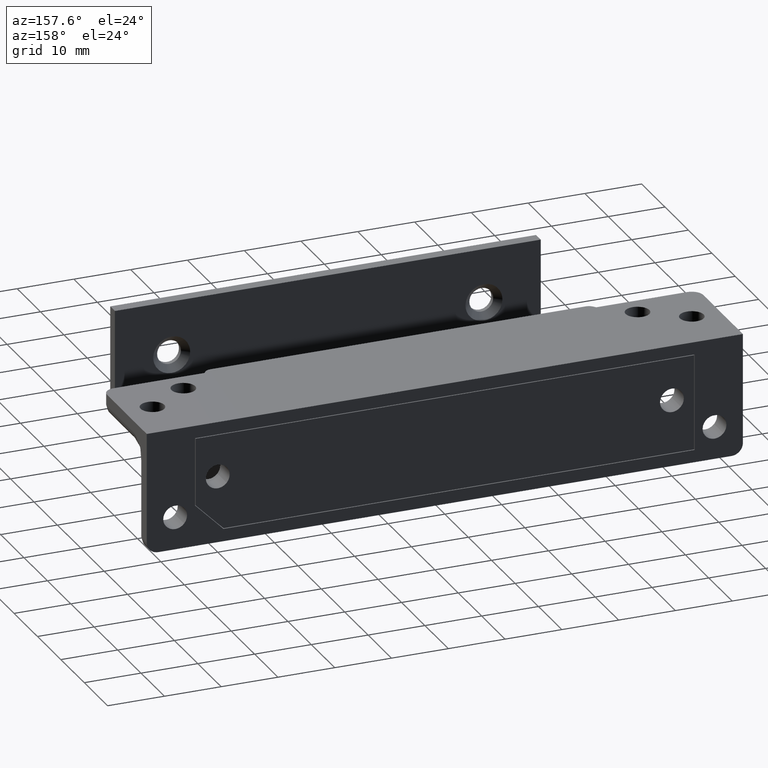
[diagram: clean part render]
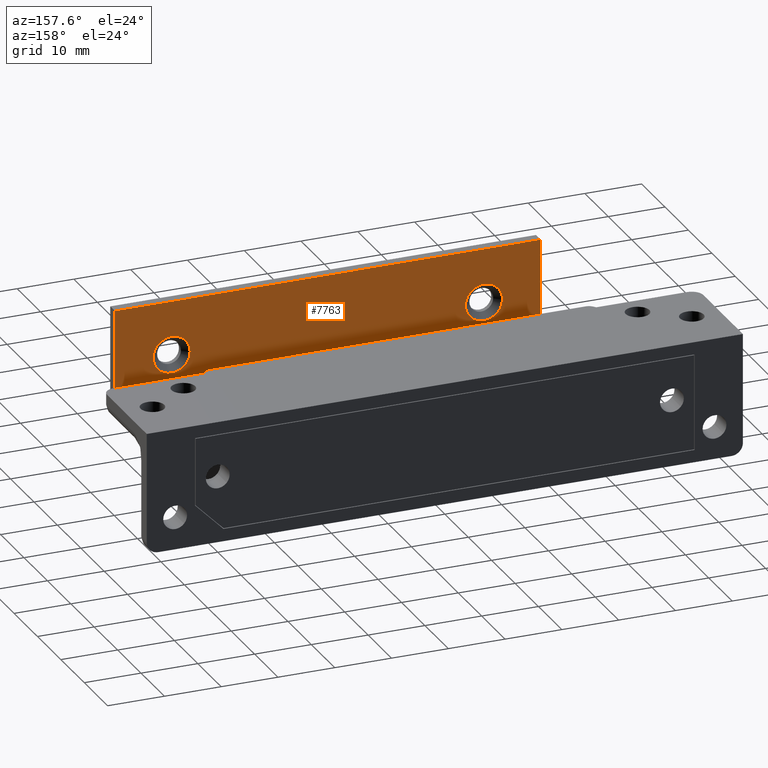
[diagram: same view with one face highlighted and labeled with its STEP entity id]
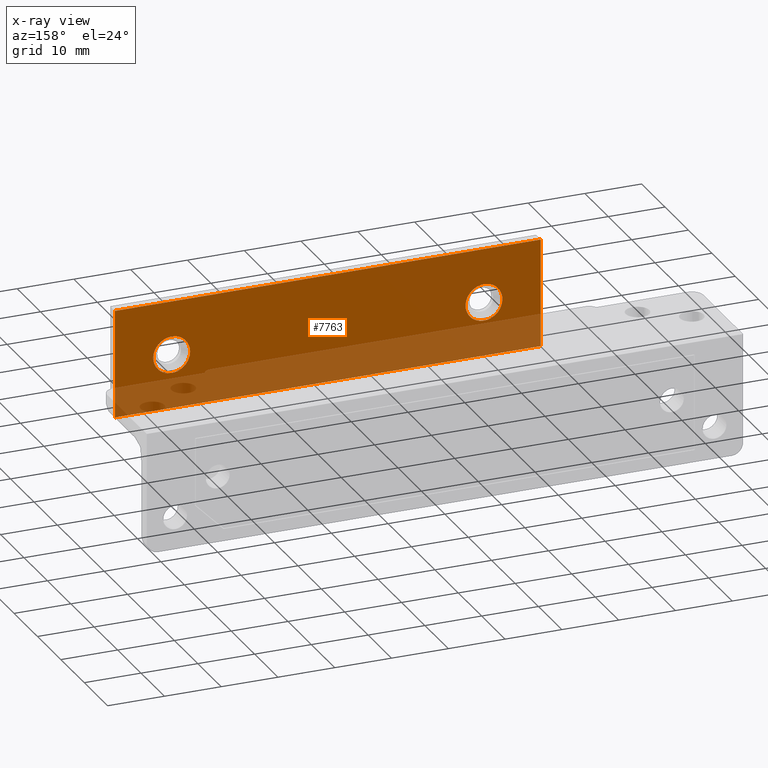
[diagram: x-ray of the same camera — body ghosted, the highlighted face saturated]
A machine part, auxiliary view. The second image highlights one B-rep face of the part: STEP entity #7763.
The next image is the same camera in x-ray: the body ghosted, the highlighted face saturated — about 31% of this face is hidden behind the body in this view.
In plain terms, the highlighted face is a freeform B-spline surface patch.
Its self-contained STEP definition (entity closure, byte-faithful):
#7080=CARTESIAN_POINT('',(29.777954735354552,-50.000000177712749,-2.318063579535655));
#7081=VERTEX_POINT('',#7080);
#7087=CARTESIAN_POINT('',(27.500000000000000,-50.000000000028876,-3.249999999984709));
#7088=VERTEX_POINT('',#7087);
#7089=CARTESIAN_POINT('',(27.500000000000000,-50.000000000028876,-3.249999999984709));
#7090=CARTESIAN_POINT('',(27.789236248653079,-50.000000022589738,-3.250084351816666));
#7091=CARTESIAN_POINT('',(28.288765553078420,-50.000000061553770,-3.182859303232132));
#7092=CARTESIAN_POINT('',(29.078739617293131,-50.000000123172917,-2.881841108904424));
#7093=CARTESIAN_POINT('',(29.534273176655141,-50.000000158705220,-2.557808117488422));
#7094=CARTESIAN_POINT('',(29.777954735354552,-50.000000177712749,-2.318063579535655));
#7095=B_SPLINE_CURVE_WITH_KNOTS('',3,(#7089,#7090,#7091,#7092,#7093,#7094),.UNSPECIFIED.,.F.,.U.,(4,1,1,4),(0.000000018384278,0.867709225963425,1.498769427861097,2.524244165452475),.UNSPECIFIED.);
#7096=EDGE_CURVE('',#7088,#7081,#7095,.T.);
#7098=CARTESIAN_POINT('',(24.250000000000309,-50.000000000028876,-0.000001421672050));
#7099=VERTEX_POINT('',#7098);
#7100=CARTESIAN_POINT('',(24.250000000000309,-50.000000000028876,-0.000001421672050));
#7101=CARTESIAN_POINT('',(24.249729508343592,-50.000000000028876,-0.372288937900451));
#7102=CARTESIAN_POINT('',(24.370116174609748,-50.000000000028876,-1.063388400728770));
#7103=CARTESIAN_POINT('',(24.851504641336138,-50.000000000028876,-1.964280287381844));
#7104=CARTESIAN_POINT('',(25.478787226577069,-50.000000000028876,-2.591384195304550));
#7105=CARTESIAN_POINT('',(26.125991528228369,-50.000000000028876,-2.968482681876818));
#7106=CARTESIAN_POINT('',(26.782129390780341,-50.000000000028876,-3.194210430665273));
#7107=CARTESIAN_POINT('',(27.234104099381110,-50.000000000028876,-3.250062899152202));
#7108=CARTESIAN_POINT('',(27.500000000000000,-50.000000000028876,-3.249999999984709));
#7109=B_SPLINE_CURVE_WITH_KNOTS('',3,(#7100,#7101,#7102,#7103,#7104,#7105,#7106,#7107,#7108),.UNSPECIFIED.,.F.,.U.,(4,1,1,1,1,1,4),(0.000000064401550,1.116762141591425,2.074010538020876,3.031212857517661,3.749142410847695,4.307530085255475,5.105215367780756),.UNSPECIFIED.);
#7110=EDGE_CURVE('',#7099,#7088,#7109,.T.);
#7112=CARTESIAN_POINT('',(25.222045264645448,-50.000000177712742,2.318063579566243));
#7113=VERTEX_POINT('',#7112);
#7114=CARTESIAN_POINT('',(25.222045264645448,-50.000000177712742,2.318063579566243));
#7115=CARTESIAN_POINT('',(25.049431191091191,-50.000000164715367,2.148499630264473));
#7116=CARTESIAN_POINT('',(24.759455658484541,-50.000000137355840,1.791567014809346));
#7117=CARTESIAN_POINT('',(24.366637793193679,-50.000000078319360,1.021376678128810));
#7118=CARTESIAN_POINT('',(24.249610925837509,-50.000000030945223,0.403333307649948));
#7119=CARTESIAN_POINT('',(24.250000000000309,-50.000000000028876,-0.000001421672050));
#7120=B_SPLINE_CURVE_WITH_KNOTS('',3,(#7114,#7115,#7116,#7117,#7118,#7119),.UNSPECIFIED.,.F.,.U.,(4,1,1,4),(0.000000020664869,0.725898726312078,1.371141478815045,2.580973052977738),.UNSPECIFIED.);
#7121=EDGE_CURVE('',#7113,#7099,#7120,.T.);
#7218=CARTESIAN_POINT('',(27.500000000000000,-50.000000000028876,3.250000000015290));
#7219=VERTEX_POINT('',#7218);
#7220=CARTESIAN_POINT('',(27.500000000000000,-50.000000000028876,3.250000000015290));
#7221=CARTESIAN_POINT('',(27.210758624578141,-50.000000022590143,3.250092429246217));
#7222=CARTESIAN_POINT('',(26.763833679948750,-50.000000057450947,3.189905312030370));
#7223=CARTESIAN_POINT('',(25.968388887208000,-50.000000119496832,2.908781386168577));
#7224=CARTESIAN_POINT('',(25.503148611059260,-50.000000155786260,2.594809348598150));
#7225=CARTESIAN_POINT('',(25.222045264645448,-50.000000177712742,2.318063579566243));
#7226=B_SPLINE_CURVE_WITH_KNOTS('',3,(#7220,#7221,#7222,#7223,#7224,#7225),.UNSPECIFIED.,.F.,.U.,(4,1,1,4),(0.000000018384682,0.867709225963697,1.341004305125148,2.524244165452466),.UNSPECIFIED.);
#7227=EDGE_CURVE('',#7219,#7113,#7226,.T.);
#7229=CARTESIAN_POINT('',(30.749999999999691,-50.000000000028876,0.000001421702658));
#7230=VERTEX_POINT('',#7229);
#7231=CARTESIAN_POINT('',(30.749999999999691,-50.000000000028876,0.000001421702658));
#7232=CARTESIAN_POINT('',(30.750142736657899,-50.000000000028876,0.319085247449473));
#7233=CARTESIAN_POINT('',(30.663139963746360,-50.000000000028876,0.903957290492452));
#7234=CARTESIAN_POINT('',(30.337454528502949,-50.000000000028876,1.638708578682652));
#7235=CARTESIAN_POINT('',(29.891795635182021,-50.000000000028876,2.239583064643636));
#7236=CARTESIAN_POINT('',(29.384684355298099,-50.000000000028876,2.677043592834235));
#7237=CARTESIAN_POINT('',(28.823523235984759,-50.000000000028876,2.985829888192655));
#7238=CARTESIAN_POINT('',(28.217874207433528,-50.000000000028876,3.194206730657289));
#7239=CARTESIAN_POINT('',(27.765894396333611,-50.000000000028876,3.250065628573207));
#7240=CARTESIAN_POINT('',(27.500000000000000,-50.000000000028876,3.250000000015290));
#7241=B_SPLINE_CURVE_WITH_KNOTS('',3,(#7231,#7232,#7233,#7234,#7235,#7236,#7237,#7238,#7239,#7240),.UNSPECIFIED.,.F.,.U.,(4,1,1,1,1,1,1,4),(0.000000064401016,0.957219679815024,1.754930391529063,2.393080650056512,3.190752637557175,3.749142410847547,4.307530085255438,5.105215367780743),.UNSPECIFIED.);
#7242=EDGE_CURVE('',#7230,#7219,#7241,.T.);
#7244=CARTESIAN_POINT('',(29.777954735354552,-50.000000177712749,-2.318063579535655));
#7245=CARTESIAN_POINT('',(29.950560401551460,-50.000000164715388,-2.148499957011680));
#7246=CARTESIAN_POINT('',(30.240560664902169,-50.000000137355983,-1.791568785072204));
#7247=CARTESIAN_POINT('',(30.633348086990910,-50.000000078319360,-1.021376595650371));
#7248=CARTESIAN_POINT('',(30.750395438635799,-50.000000030945174,-0.403332735397646));
#7249=CARTESIAN_POINT('',(30.749999999999691,-50.000000000028876,0.000001421702658));
#7250=B_SPLINE_CURVE_WITH_KNOTS('',3,(#7244,#7245,#7246,#7247,#7248,#7249),.UNSPECIFIED.,.F.,.U.,(4,1,1,4),(0.000000020664701,0.725898726312060,1.371141478815047,2.580973052977759),.UNSPECIFIED.);
#7251=EDGE_CURVE('',#7081,#7230,#7250,.T.);
#7276=CARTESIAN_POINT('',(-25.222045264645448,-50.000000177712742,-2.318063579566240));
#7277=VERTEX_POINT('',#7276);
#7283=CARTESIAN_POINT('',(-27.500000000000000,-50.000000000028876,-3.250000000015290));
#7284=VERTEX_POINT('',#7283);
#7285=CARTESIAN_POINT('',(-27.500000000000000,-50.000000000028876,-3.250000000015290));
#7286=CARTESIAN_POINT('',(-27.263357725444841,-50.000000018487327,-3.250032667524085));
#7287=CARTESIAN_POINT('',(-26.763789691108851,-50.000000057454379,-3.195215671057691));
#7288=CARTESIAN_POINT('',(-25.964609134286039,-50.000000119791657,-2.912803420932142));
#7289=CARTESIAN_POINT('',(-25.465748596573320,-50.000000158703521,-2.557760557089715));
#7290=CARTESIAN_POINT('',(-25.222045264645448,-50.000000177712742,-2.318063579566240));
#7291=B_SPLINE_CURVE_WITH_KNOTS('',3,(#7285,#7286,#7287,#7288,#7289,#7290),.UNSPECIFIED.,.F.,.U.,(4,1,1,4),(0.000000018384462,0.709943720819770,1.498769427861115,2.524244165452472),.UNSPECIFIED.);
#7292=EDGE_CURVE('',#7284,#7277,#7291,.T.);
#7294=CARTESIAN_POINT('',(-30.749999999999691,-50.000000000028876,-0.000001421702630));
#7295=VERTEX_POINT('',#7294);
#7296=CARTESIAN_POINT('',(-30.749999999999691,-50.000000000028876,-0.000001421702630));
#7297=CARTESIAN_POINT('',(-30.750123028379932,-50.000000000028876,-0.319078588820787));
#7298=CARTESIAN_POINT('',(-30.671056672675451,-50.000000000028876,-0.850789064889117));
#7299=CARTESIAN_POINT('',(-30.405146777706278,-50.000000000028876,-1.492543591170997));
#7300=CARTESIAN_POINT('',(-30.091342387183531,-50.000000000028876,-1.988074558392051));
#7301=CARTESIAN_POINT('',(-29.607017685378569,-50.000000000028876,-2.522745085236253));
#7302=CARTESIAN_POINT('',(-28.975027239759221,-50.000000000028876,-2.933875184793548));
#7303=CARTESIAN_POINT('',(-28.217861222788670,-50.000000000028876,-3.194187614251335));
#7304=CARTESIAN_POINT('',(-27.765894570068529,-50.000000000028876,-3.250065349796170));
#7305=CARTESIAN_POINT('',(-27.500000000000000,-50.000000000028876,-3.250000000015290));
#7306=B_SPLINE_CURVE_WITH_KNOTS('',3,(#7296,#7297,#7298,#7299,#7300,#7301,#7302,#7303,#7304,#7305),.UNSPECIFIED.,.F.,.U.,(4,1,1,1,1,1,1,4),(0.000000064401023,0.957219679815100,1.595388777083437,2.074010538020763,2.712138967373937,3.749142410847658,4.307530085255511,5.105215367780757),.UNSPECIFIED.);
#7307=EDGE_CURVE('',#7295,#7284,#7306,.T.);
#7309=CARTESIAN_POINT('',(-29.777954735354559,-50.000000177712742,2.318063579535663));
#7310=VERTEX_POINT('',#7309);
#7311=CARTESIAN_POINT('',(-29.777954735354559,-50.000000177712742,2.318063579535663));
#7312=CARTESIAN_POINT('',(-29.912183640889541,-50.000000167602387,2.186163774927922));
#7313=CARTESIAN_POINT('',(-30.210295836625981,-50.000000140873240,1.837455095945971));
#7314=CARTESIAN_POINT('',(-30.623222398482039,-50.000000082441581,1.075155220203669));
#7315=CARTESIAN_POINT('',(-30.750378672906969,-50.000000030944328,0.403321755221242));
#7316=CARTESIAN_POINT('',(-30.749999999999691,-50.000000000028876,-0.000001421702630));
#7317=B_SPLINE_CURVE_WITH_KNOTS('',3,(#7311,#7312,#7313,#7314,#7315,#7316),.UNSPECIFIED.,.F.,.U.,(4,1,1,4),(0.000000020664845,0.564587831165066,1.371141478815035,2.580973052977736),.UNSPECIFIED.);
#7318=EDGE_CURVE('',#7310,#7295,#7317,.T.);
#7413=CARTESIAN_POINT('',(-27.500000000000000,-50.000000000028876,3.249999999984709));
#7414=VERTEX_POINT('',#7413);
#7415=CARTESIAN_POINT('',(-27.500000000000000,-50.000000000028876,3.249999999984709));
#7416=CARTESIAN_POINT('',(-27.736643234341010,-50.000000018487398,3.250040805356807));
#7417=CARTESIAN_POINT('',(-28.183608550316631,-50.000000053351357,3.200944577092945));
#7418=CARTESIAN_POINT('',(-28.987316580218408,-50.000000116041790,2.938734473976679));
#7419=CARTESIAN_POINT('',(-29.496831143120190,-50.000000155784683,2.594770076723193));
#7420=CARTESIAN_POINT('',(-29.777954735354559,-50.000000177712742,2.318063579535663));
#7421=B_SPLINE_CURVE_WITH_KNOTS('',3,(#7415,#7416,#7417,#7418,#7419,#7420),.UNSPECIFIED.,.F.,.U.,(4,1,1,4),(0.000000018385017,0.709943720820113,1.341004305125209,2.524244165452468),.UNSPECIFIED.);
#7422=EDGE_CURVE('',#7414,#7310,#7421,.T.);
#7424=CARTESIAN_POINT('',(-24.250000000000309,-50.000000000028876,0.000001421672076));
#7425=VERTEX_POINT('',#7424);
#7426=CARTESIAN_POINT('',(-24.250000000000309,-50.000000000028876,0.000001421672076));
#7427=CARTESIAN_POINT('',(-24.249984958313568,-50.000000000028876,0.212706949526771));
#7428=CARTESIAN_POINT('',(-24.297099104451519,-50.000000000028876,0.691322118544175));
#7429=CARTESIAN_POINT('',(-24.515589453197631,-50.000000000028876,1.352691379790430));
#7430=CARTESIAN_POINT('',(-24.872749810031120,-50.000000000028876,1.948512120745751));
#7431=CARTESIAN_POINT('',(-25.321303073714990,-50.000000000028876,2.443412301134377));
#7432=CARTESIAN_POINT('',(-25.928325299567771,-50.000000000028876,2.882294389241335));
#7433=CARTESIAN_POINT('',(-26.675756374772149,-50.000000000028876,3.181127776863941));
#7434=CARTESIAN_POINT('',(-27.234107829061859,-50.000000000028876,3.250055237087814));
#7435=CARTESIAN_POINT('',(-27.500000000000000,-50.000000000028876,3.249999999984709));
#7436=B_SPLINE_CURVE_WITH_KNOTS('',3,(#7426,#7427,#7428,#7429,#7430,#7431,#7432,#7433,#7434,#7435),.UNSPECIFIED.,.F.,.U.,(4,1,1,1,1,1,1,4),(0.000000064400994,0.638137357831984,1.435846731178808,2.074010538020847,2.712138967373959,3.430063221698770,4.307530085255451,5.105215367780743),.UNSPECIFIED.);
#7437=EDGE_CURVE('',#7425,#7414,#7436,.T.);
#7439=CARTESIAN_POINT('',(-25.222045264645448,-50.000000177712742,-2.318063579566240));
#7440=CARTESIAN_POINT('',(-25.011037542922750,-50.000000161829163,-2.110846114989051));
#7441=CARTESIAN_POINT('',(-24.729224337786079,-50.000000133837233,-1.745663184142493));
#7442=CARTESIAN_POINT('',(-24.356479113798610,-50.000000074198397,-0.967614503417273));
#7443=CARTESIAN_POINT('',(-24.249603880410589,-50.000000030945841,-0.403341405785203));
#7444=CARTESIAN_POINT('',(-24.250000000000309,-50.000000000028876,0.000001421672076));
#7445=B_SPLINE_CURVE_WITH_KNOTS('',3,(#7439,#7440,#7441,#7442,#7443,#7444),.UNSPECIFIED.,.F.,.U.,(4,1,1,4),(0.000000020664956,0.887209815646021,1.371141478815017,2.580973052977766),.UNSPECIFIED.);
#7446=EDGE_CURVE('',#7277,#7425,#7445,.T.);
#7712=CARTESIAN_POINT('',(-41.246249854783812,-50.000000000028876,10.449049963163629));
#7713=CARTESIAN_POINT('',(41.246251866144050,-50.000000000028876,10.449049963163629));
#7714=CARTESIAN_POINT('',(-41.246249854783812,-50.000000000028876,-10.449050472821090));
#7715=CARTESIAN_POINT('',(41.246251866144057,-50.000000000028876,-10.449050472821090));
#7716=B_SPLINE_SURFACE_WITH_KNOTS('',1,1,((#7712,#7714),(#7713,#7715)),.UNSPECIFIED.,.F.,.F.,.U.,(2,2),(2,2),(0.0,82.492501720927862),(0.0,20.898100435984720),.UNSPECIFIED.);
#7717=CARTESIAN_POINT('',(37.499999999838998,-50.000000000028862,9.499999999988571));
#7718=VERTEX_POINT('',#7717);
#7719=CARTESIAN_POINT('',(37.499999999851852,-50.000000000028862,-9.500000000026200));
#7720=VERTEX_POINT('',#7719);
#7721=CARTESIAN_POINT('',(37.499999999838998,-50.000000000028862,9.499999999988571));
#7722=CARTESIAN_POINT('',(37.499999999851852,-50.000000000028862,-9.500000000026200));
#7723=QUASI_UNIFORM_CURVE('',1,(#7721,#7722),.UNSPECIFIED.,.F.,.U.);
#7724=EDGE_CURVE('',#7718,#7720,#7723,.T.);
#7725=ORIENTED_EDGE('',*,*,#7724,.T.);
#7726=CARTESIAN_POINT('',(-37.500000000148347,-50.000000000028862,-9.500000000026319));
#7727=VERTEX_POINT('',#7726);
#7728=CARTESIAN_POINT('',(37.499999999851852,-50.000000000028862,-9.500000000026200));
#7729=CARTESIAN_POINT('',(-37.500000000148347,-50.000000000028862,-9.500000000026319));
#7730=QUASI_UNIFORM_CURVE('',1,(#7728,#7729),.UNSPECIFIED.,.F.,.U.);
#7731=EDGE_CURVE('',#7720,#7727,#7730,.T.);
#7732=ORIENTED_EDGE('',*,*,#7731,.T.);
#7733=CARTESIAN_POINT('',(-37.500000000148148,-50.000000000028862,9.499999999973680));
#7734=VERTEX_POINT('',#7733);
#7735=CARTESIAN_POINT('',(-37.500000000148347,-50.000000000028862,-9.500000000026319));
#7736=CARTESIAN_POINT('',(-37.500000000148148,-50.000000000028862,9.499999999973680));
#7737=QUASI_UNIFORM_CURVE('',1,(#7735,#7736),.UNSPECIFIED.,.F.,.U.);
#7738=EDGE_CURVE('',#7727,#7734,#7737,.T.);
#7739=ORIENTED_EDGE('',*,*,#7738,.T.);
#7740=CARTESIAN_POINT('',(-37.500000000148148,-50.000000000028862,9.499999999973680));
#7741=CARTESIAN_POINT('',(37.499999999838998,-50.000000000028862,9.499999999988571));
#7742=QUASI_UNIFORM_CURVE('',1,(#7740,#7741),.UNSPECIFIED.,.F.,.U.);
#7743=EDGE_CURVE('',#7734,#7718,#7742,.T.);
#7744=ORIENTED_EDGE('',*,*,#7743,.T.);
#7745=EDGE_LOOP('',(#7725,#7732,#7739,#7744));
#7746=FACE_OUTER_BOUND('',#7745,.T.);
#7747=ORIENTED_EDGE('',*,*,#7110,.T.);
#7748=ORIENTED_EDGE('',*,*,#7096,.T.);
#7749=ORIENTED_EDGE('',*,*,#7251,.T.);
#7750=ORIENTED_EDGE('',*,*,#7242,.T.);
#7751=ORIENTED_EDGE('',*,*,#7227,.T.);
#7752=ORIENTED_EDGE('',*,*,#7121,.T.);
#7753=EDGE_LOOP('',(#7747,#7748,#7749,#7750,#7751,#7752));
#7754=FACE_BOUND('',#7753,.T.);
#7755=ORIENTED_EDGE('',*,*,#7307,.T.);
#7756=ORIENTED_EDGE('',*,*,#7292,.T.);
#7757=ORIENTED_EDGE('',*,*,#7446,.T.);
#7758=ORIENTED_EDGE('',*,*,#7437,.T.);
#7759=ORIENTED_EDGE('',*,*,#7422,.T.);
#7760=ORIENTED_EDGE('',*,*,#7318,.T.);
#7761=EDGE_LOOP('',(#7755,#7756,#7757,#7758,#7759,#7760));
#7762=FACE_BOUND('',#7761,.T.);
#7763=ADVANCED_FACE('',(#7746,#7754,#7762),#7716,.T.);